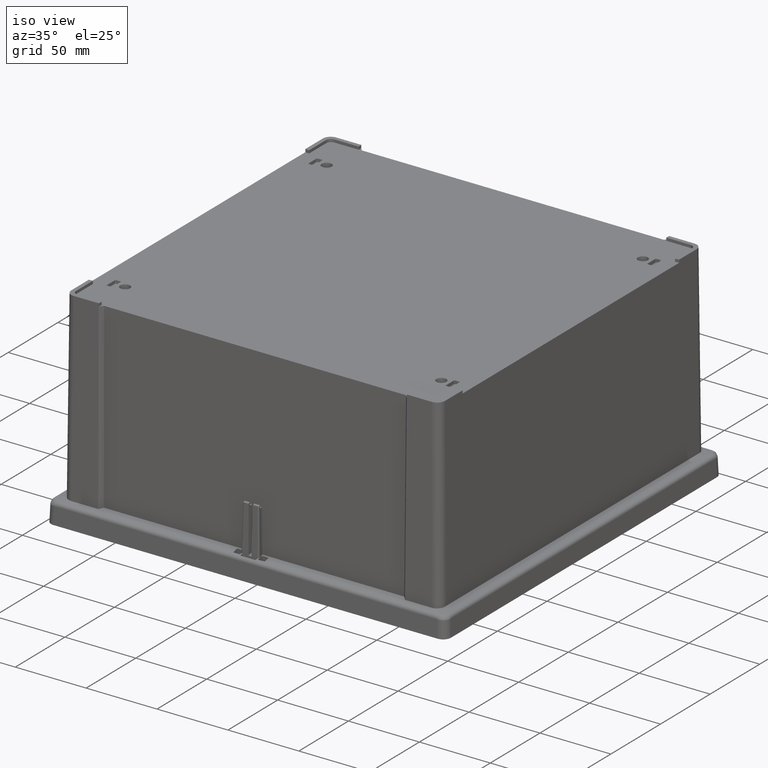
[diagram: clean part render]
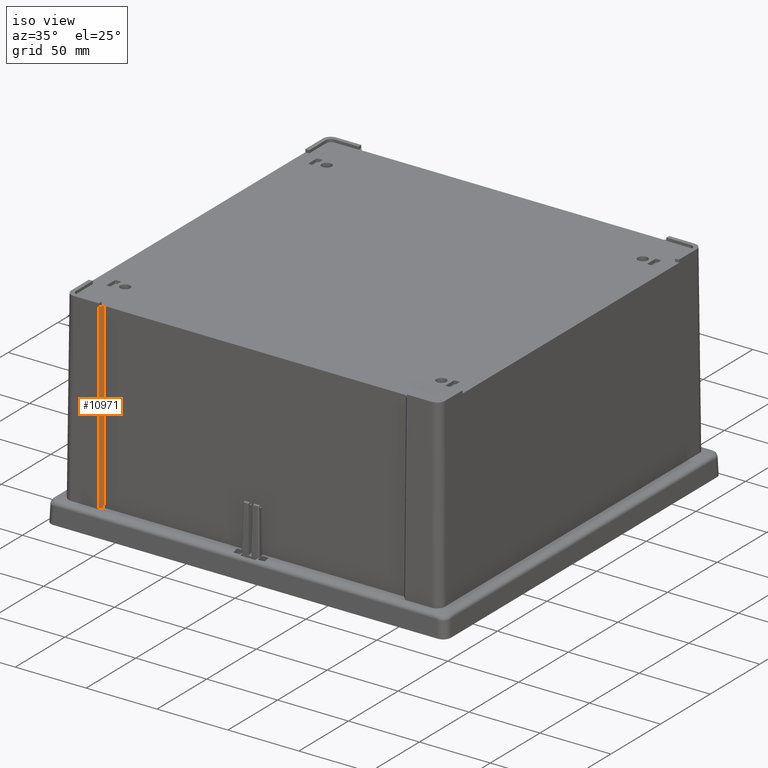
[diagram: same view with one face highlighted and labeled with its STEP entity id]
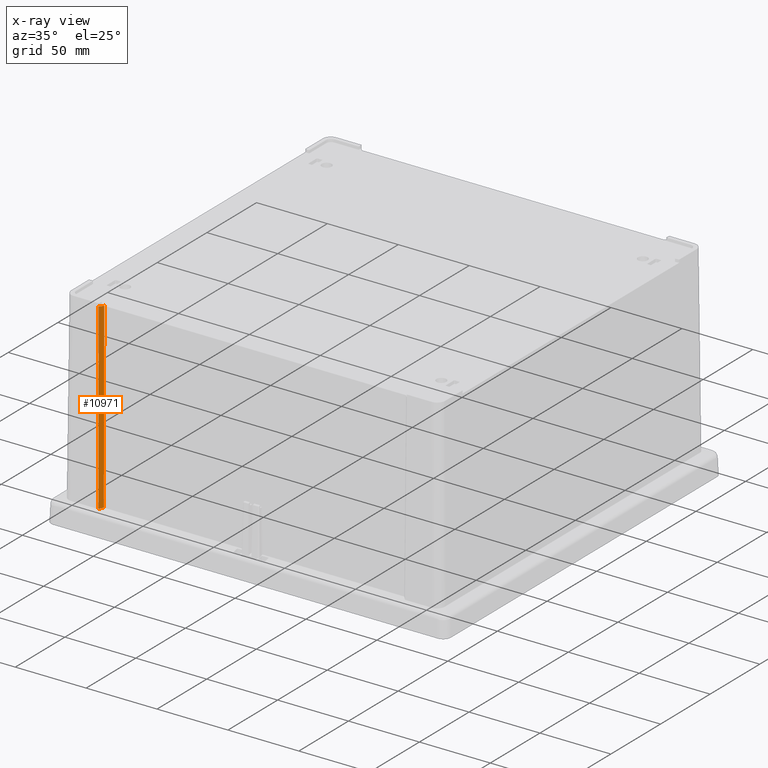
[diagram: x-ray of the same camera — body ghosted, the highlighted face saturated]
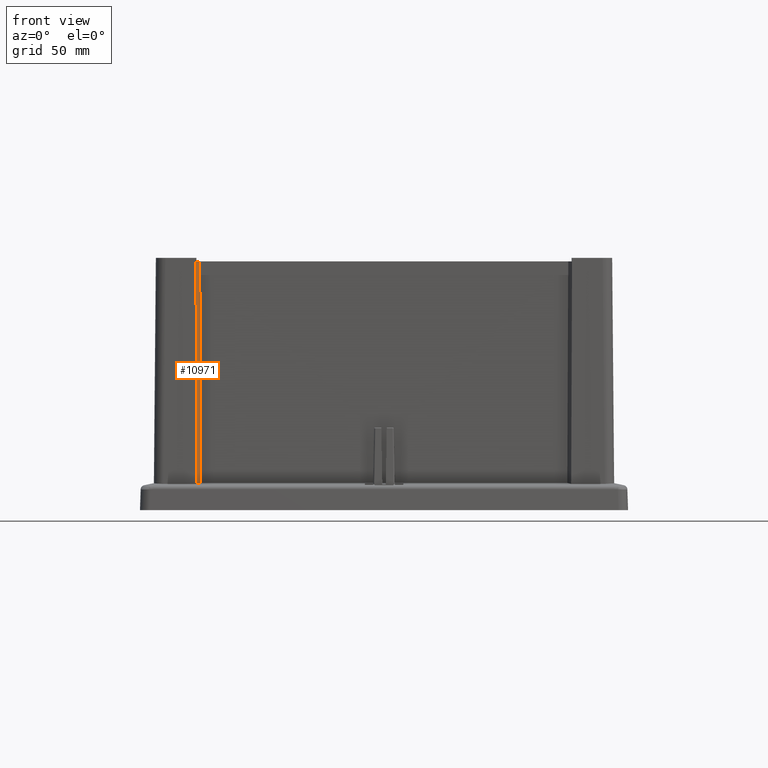
[diagram: same view with one face highlighted and labeled with its STEP entity id]
A machine part, iso view. The second image highlights one B-rep face of the part: STEP entity #10971.
The next image is the same camera in x-ray: the body ghosted, the highlighted face saturated — about 0% of this face is hidden behind the body in this view.
A second angle (front view) of the same face is appended — the face is thin or edge-on in the first view.
In plain terms, the highlighted planar face has unit normal (-0.7507, 0.6606, -0.0087).
Its self-contained STEP definition (entity closure, byte-faithful):
#2575 = CARTESIAN_POINT ( 'NONE',  ( -105.9370328974375000, -130.8527791327002200, 15.72395395345470300 ) ) ;
#2754 = CARTESIAN_POINT ( 'NONE',  ( -108.6347002006906900, -132.2298832932866600, 143.7499999999999700 ) ) ;
#2755 = DIRECTION ( 'NONE',  ( -0.003944939861817611800, 0.008726467594535080800, 0.9999541420549285000 ) ) ;
#2756 = VECTOR ( 'NONE', #2755, 1000.000000000000100 ) ;
#2757 = CARTESIAN_POINT ( 'NONE',  ( -108.1349320180529400, -133.3574264166923900, 15.19142795402333600 ) ) ;
#2758 = LINE ( 'NONE', #2757, #2756 ) ;
#2759 = CARTESIAN_POINT ( 'NONE',  ( -108.1349320180529200, -133.3574264166923900, 15.19142795402333600 ) ) ;
#2889 = DIRECTION ( 'NONE',  ( -0.6513157880115010300, -0.7422161937111516600, -0.1578064196409242600 ) ) ;
#2890 = VECTOR ( 'NONE', #2889, 1000.000000000000100 ) ;
#2891 = CARTESIAN_POINT ( 'NONE',  ( -105.9370328974375300, -130.8527791327002200, 15.72395395345470300 ) ) ;
#2892 = LINE ( 'NONE', #2891, #2890 ) ;
#3988 = CARTESIAN_POINT ( 'NONE',  ( -106.4421111116864700, -129.7355127550784500, 143.7499999999999700 ) ) ;
#3989 = DIRECTION ( 'NONE',  ( -0.003944939861818021200, 0.008726467594535016600, 0.9999541420549285000 ) ) ;
#3990 = VECTOR ( 'NONE', #3989, 1000.000000000000100 ) ;
#3991 = CARTESIAN_POINT ( 'NONE',  ( -105.9370328974375000, -130.8527791327002200, 15.72395395345470300 ) ) ;
#3992 = DIRECTION ( 'NONE',  ( -0.6606278948920251100, -0.7507135169227550100, 0.0000000000000000000 ) ) ;
#3993 = DIRECTION ( 'NONE',  ( -0.7506849320523454300, 0.6606027402060646900, -0.008726535498373936400 ) ) ;
#3994 = CARTESIAN_POINT ( 'NONE',  ( -111.4260307805636400, -137.2979895233677900, 0.0000000000000000000 ) ) ;
#3995 = AXIS2_PLACEMENT_3D ( 'NONE', #3994, #3993, #3992 ) ;
#3996 = PLANE ( 'NONE',  #3995 ) ;
#3997 = LINE ( 'NONE', #3991, #3990 ) ;
#3998 = FACE_OUTER_BOUND ( 'NONE', #10972, .T. ) ;
#4094 = DIRECTION ( 'NONE',  ( 0.6606278948920244500, 0.7507135169227554500, 0.0000000000000000000 ) ) ;
#4095 = VECTOR ( 'NONE', #4094, 1000.000000000000000 ) ;
#4096 = CARTESIAN_POINT ( 'NONE',  ( -108.6300838857409300, -132.2218454528675700, 143.7500000000000000 ) ) ;
#4097 = LINE ( 'NONE', #4096, #4095 ) ;
#10274 = VERTEX_POINT ( 'NONE', #2759 ) ;
#10276 = EDGE_CURVE ( 'NONE', #10274, #10277, #2758, .T. ) ;
#10277 = VERTEX_POINT ( 'NONE', #2754 ) ;
#10306 = VERTEX_POINT ( 'NONE', #2575 ) ;
#10367 = EDGE_CURVE ( 'NONE', #10306, #10274, #2892, .T. ) ;
#10971 = ADVANCED_FACE ( 'NONE', ( #3998 ), #3996, .F. ) ;
#10972 = EDGE_LOOP ( 'NONE', ( #10973, #11031, #11033, #11034 ) ) ;
#10973 = ORIENTED_EDGE ( 'NONE', *, *, #10974, .T. ) ;
#10974 = EDGE_CURVE ( 'NONE', #10306, #10975, #3997, .T. ) ;
#10975 = VERTEX_POINT ( 'NONE', #3988 ) ;
#11031 = ORIENTED_EDGE ( 'NONE', *, *, #11032, .F. ) ;
#11032 = EDGE_CURVE ( 'NONE', #10277, #10975, #4097, .T. ) ;
#11033 = ORIENTED_EDGE ( 'NONE', *, *, #10276, .F. ) ;
#11034 = ORIENTED_EDGE ( 'NONE', *, *, #10367, .F. ) ;